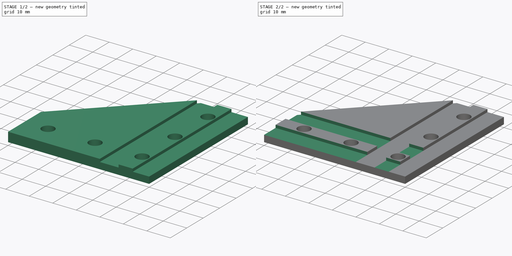
[diagram: build sequence overview — one tinted view per stage of 2, left to right]
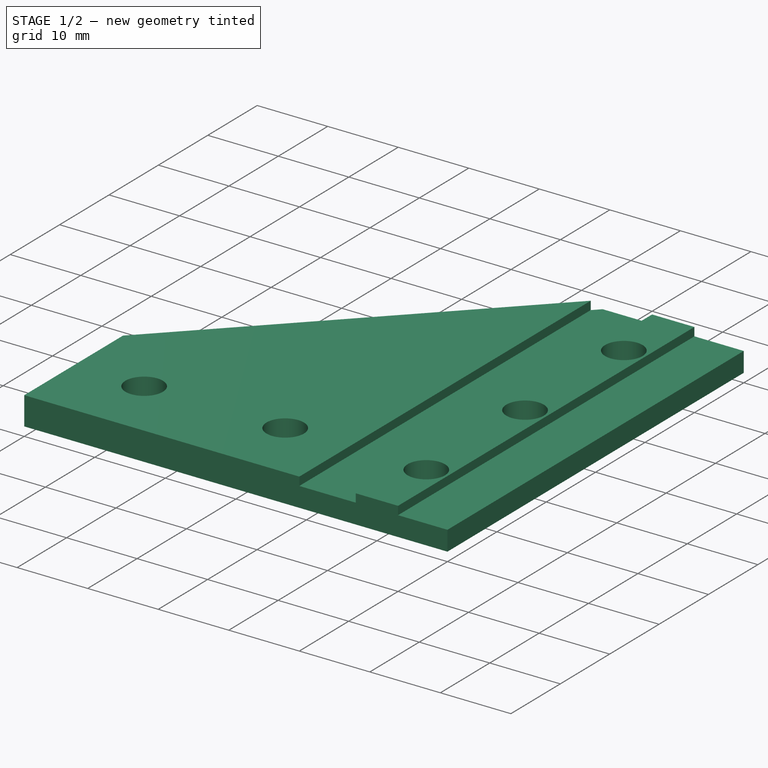
[diagram: stage 1 of 2 — iso view after this stage's code; geometry added in this stage tinted green]
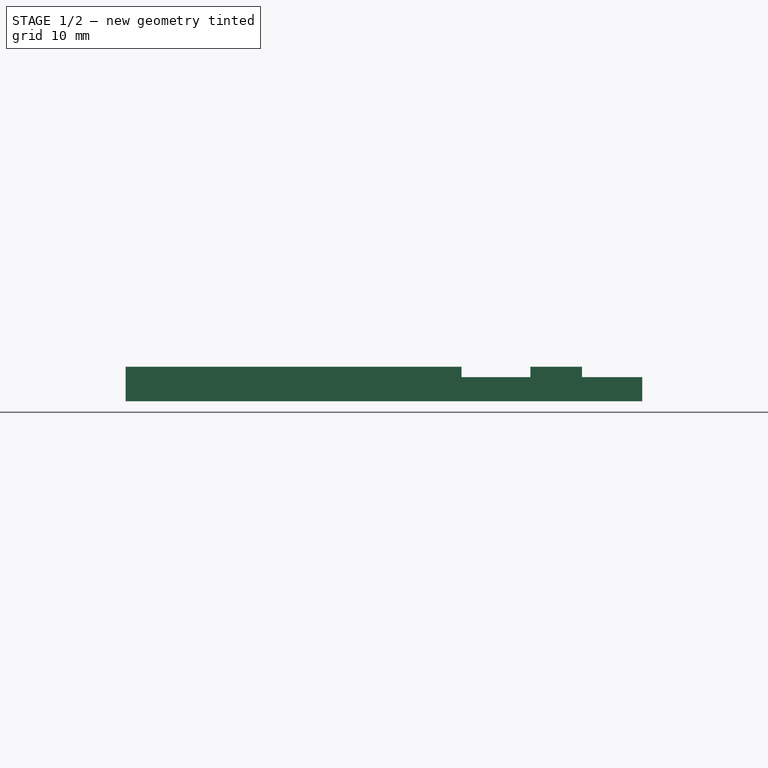
[diagram: stage 1 of 2 — front view after this stage's code; geometry added in this stage tinted green]
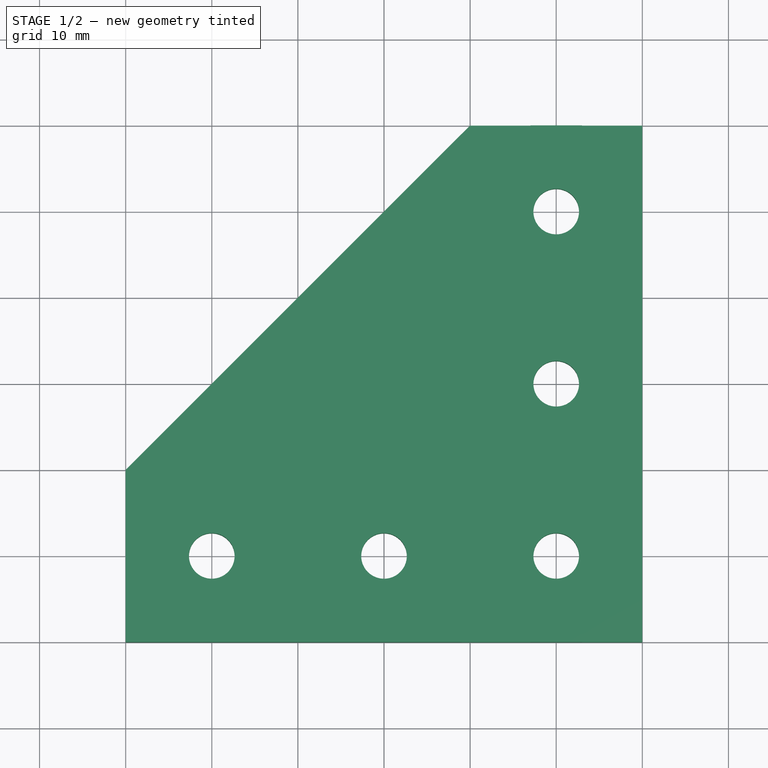
[diagram: stage 1 of 2 — top view after this stage's code; geometry added in this stage tinted green]
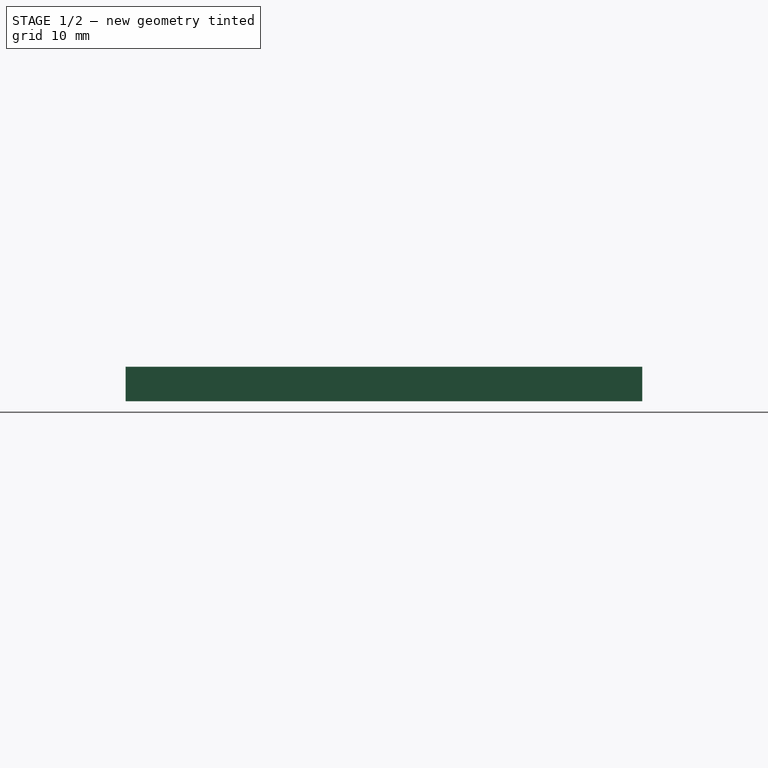
[diagram: stage 1 of 2 — right view after this stage's code; geometry added in this stage tinted green]
FCSTD DOCUMENT  (FreeCAD 0.15R4671 (Git))
Label: lplate
License: All rights reserved
LicenseURL: http://en.wikipedia.org/wiki/All_rights_reserved
objects: Sketcher::SketchObject×3, PartDesign::Pocket×2, PartDesign::Pad×1
note: 9 computed .brp shape members not serialized (recipe doc carries the construction recipe); baked Part::Feature solids carry a one-line shape summary decoded from their .brp

FEATURE [Sketcher::SketchObject] Sketch
  sketch-geometry (12):
    g0: LineSegment StartX=0 StartY=0 StartZ=0 EndX=0 EndY=60 EndZ=0
    g1: LineSegment StartX=0 StartY=60 StartZ=0 EndX=-20 EndY=60 EndZ=0
    g2: LineSegment StartX=-20 StartY=60 StartZ=0 EndX=-60 EndY=20 EndZ=0
    g3: LineSegment StartX=-60 StartY=20 StartZ=0 EndX=-60 EndY=0 EndZ=0
    g4: LineSegment StartX=-60 StartY=0 StartZ=0 EndX=0 EndY=0 EndZ=0
    g5: LineSegment [constr] StartX=-60 StartY=10 StartZ=0 EndX=0 EndY=10 EndZ=0
    g6: LineSegment [constr] StartX=-10 StartY=60 StartZ=0 EndX=-10 EndY=0 EndZ=0
    g7: Circle CenterX=-50 CenterY=10 CenterZ=0 NormalX=0 NormalY=0 NormalZ=1 Radius=2.65
    g8: Circle CenterX=-10 CenterY=10 CenterZ=0 NormalX=0 NormalY=0 NormalZ=1 Radius=2.65
    g9: Circle CenterX=-30 CenterY=10 CenterZ=0 NormalX=0 NormalY=0 NormalZ=1 Radius=2.65
    g10: Circle CenterX=-10 CenterY=50 CenterZ=0 NormalX=0 NormalY=0 NormalZ=1 Radius=2.65
    g11: Circle CenterX=-10 CenterY=30 CenterZ=0 NormalX=0 NormalY=0 NormalZ=1 Radius=2.65
  constraints (37):
    c: Coincident(g-1,g0)
    c: PointOnObject(g0,g-2)
    c: Coincident(g0,g1)
    c: Horizontal(g1)
    c: Coincident(g1,g2)
    c: Coincident(g2,g3)
    c: Vertical(g3)
    c: Coincident(g3,g4)
    c: Coincident(g4,g0)
    c: Horizontal(g4)
    c: DistanceX(g-1,g3) = -60
    c: DistanceY(g-1,g0) = 60
    c: Equal(g3,g1)
    c: DistanceY(g2,g3) = -20
    c: Horizontal(g5)
    c: Vertical(g6)
    c: DistanceX(g0,g6) = -10
    c: DistanceY(g5,g3) = -10
    c: PointOnObject(g5,g0)
    c: PointOnObject(g6,g4)
    c: PointOnObject(g5,g3)
    c: PointOnObject(g6,g1)
    c: PointOnObject(g7,g5)
    c: PointOnObject(g8,g5)
    c: PointOnObject(g9,g5)
    c: PointOnObject(g10,g6)
    c: PointOnObject(g11,g6)
    c: Radius(g7) = 2.65
    c: Equal(g9,g7)
    c: Equal(g8,g7)
    c: Equal(g11,g7)
    c: Equal(g10,g7)
    c: DistanceX(g8,g5) = 10
    c: DistanceX(g8,g9) = -20
    c: DistanceX(g9,g7) = -20
    c: DistanceY(g8,g11) = 20
    c: DistanceY(g11,g10) = 20
FEATURE [PartDesign::Pad] Pad
  Length = 4
  Length2 = 100
  Sketch = -> Sketch
  Type = 0
FEATURE [Sketcher::SketchObject] Sketch001
  ExternalGeometry = -> [Pad]
  Placement = pos=(0,0,0) rot=(1,0,0;1.5708rad)
  Support = -> Pad [Face5]
  sketch-geometry (8):
    g0: LineSegment StartX=-7 StartY=4 StartZ=0 EndX=0 EndY=4 EndZ=0
    g1: LineSegment StartX=0 StartY=4 StartZ=0 EndX=0 EndY=2.8 EndZ=0
    g2: LineSegment StartX=0 StartY=2.8 StartZ=0 EndX=-7 EndY=2.8 EndZ=0
    g3: LineSegment StartX=-7 StartY=2.8 StartZ=0 EndX=-7 EndY=4 EndZ=0
    g4: LineSegment StartX=-21 StartY=4 StartZ=0 EndX=-13 EndY=4 EndZ=0
    g5: LineSegment StartX=-13 StartY=4 StartZ=0 EndX=-13 EndY=2.8 EndZ=0
    g6: LineSegment StartX=-13 StartY=2.8 StartZ=0 EndX=-21 EndY=2.8 EndZ=0
    g7: LineSegment StartX=-21 StartY=2.8 StartZ=0 EndX=-21 EndY=4 EndZ=0
  constraints (24):
    c: Coincident(g0,g1)
    c: Coincident(g1,g2)
    c: Coincident(g2,g3)
    c: Coincident(g3,g0)
    c: Horizontal(g0)
    c: Horizontal(g2)
    c: Vertical(g1)
    c: Vertical(g3)
    c: PointOnObject(g0,g-4)
    c: Coincident(g4,g5)
    c: Coincident(g5,g6)
    c: Coincident(g6,g7)
    c: Coincident(g7,g4)
    c: Horizontal(g4)
    c: Horizontal(g6)
    c: Vertical(g5)
    c: Vertical(g7)
    c: PointOnObject(g4,g-4)
    c: Coincident(g0,g-4)
    c: DistanceX(g0,g4) = -6
    c: DistanceX(g0,g0) = 7
    c: DistanceX(g4,g4) = 8
    c: DistanceY(g0,g1) = -1.2
    c: Equal(g3,g5)
FEATURE [PartDesign::Pocket] Pocket
  Length = 5
  Sketch = -> Sketch001
  Type = 1
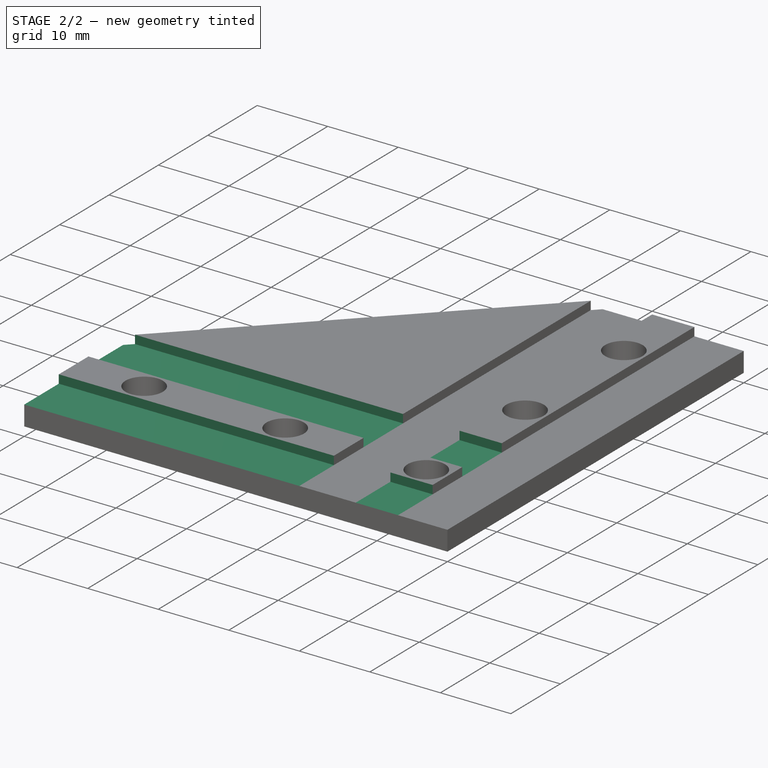
[diagram: stage 2 of 2 — iso view after this stage's code; geometry added in this stage tinted green]
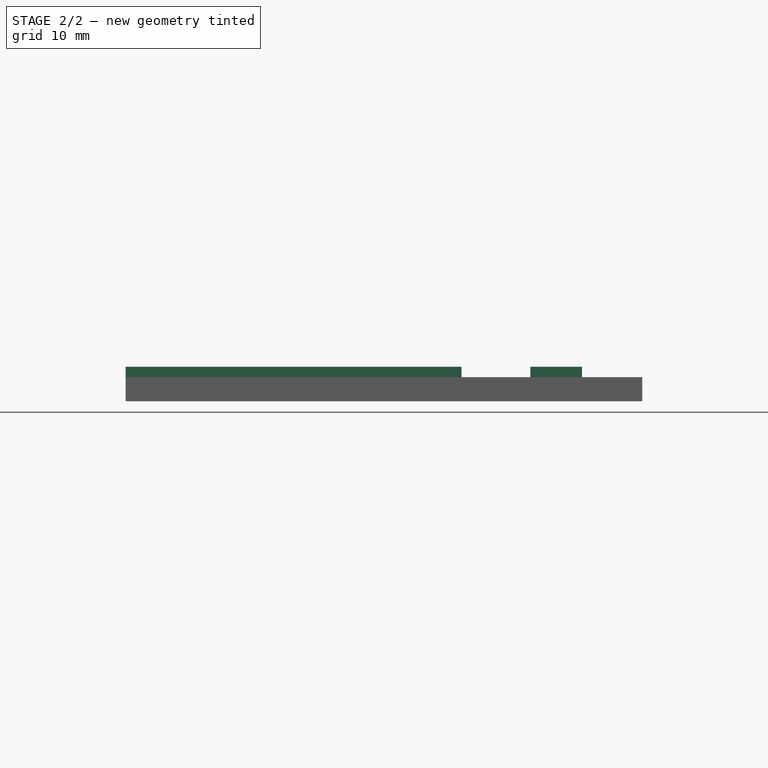
[diagram: stage 2 of 2 — front view after this stage's code; geometry added in this stage tinted green]
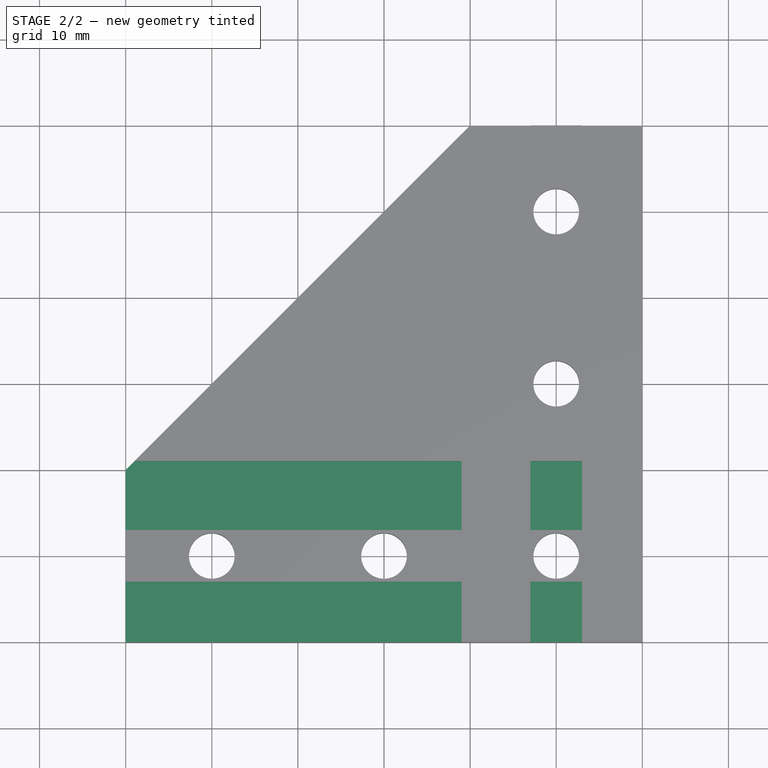
[diagram: stage 2 of 2 — top view after this stage's code; geometry added in this stage tinted green]
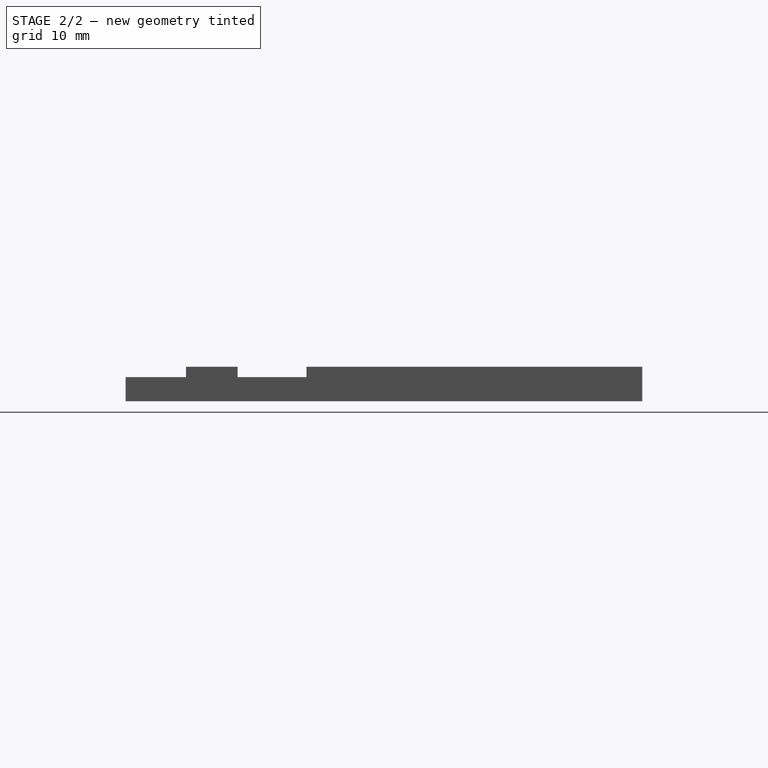
[diagram: stage 2 of 2 — right view after this stage's code; geometry added in this stage tinted green]
FEATURE [Sketcher::SketchObject] Sketch002
  ExternalGeometry = -> [Pocket]
  Placement = pos=(0,0,0) rot=(0.57735,0.57735,0.57735;2.0944rad)
  Support = -> Pocket [Face1]
  sketch-geometry (8):
    g0: LineSegment StartX=0 StartY=4 StartZ=0 EndX=7 EndY=4 EndZ=0
    g1: LineSegment StartX=7 StartY=4 StartZ=0 EndX=7 EndY=2.8 EndZ=0
    g2: LineSegment StartX=7 StartY=2.8 StartZ=0 EndX=0 EndY=2.8 EndZ=0
    g3: LineSegment StartX=0 StartY=2.8 StartZ=0 EndX=0 EndY=4 EndZ=0
    g4: LineSegment StartX=13 StartY=4 StartZ=0 EndX=21 EndY=4 EndZ=0
    g5: LineSegment StartX=21 StartY=4 StartZ=0 EndX=21 EndY=2.8 EndZ=0
    g6: LineSegment StartX=21 StartY=2.8 StartZ=0 EndX=13 EndY=2.8 EndZ=0
    g7: LineSegment StartX=13 StartY=2.8 StartZ=0 EndX=13 EndY=4 EndZ=0
  constraints (23):
    c: Coincident(g0,g1)
    c: Coincident(g1,g2)
    c: Coincident(g2,g3)
    c: Coincident(g3,g0)
    c: Horizontal(g0)
    c: Horizontal(g2)
    c: Vertical(g1)
    c: Vertical(g3)
    c: Coincident(g0,g-4)
    c: Coincident(g4,g5)
    c: Coincident(g5,g6)
    c: Coincident(g6,g7)
    c: Coincident(g7,g4)
    c: Horizontal(g4)
    c: Horizontal(g6)
    c: Vertical(g5)
    c: Vertical(g7)
    c: PointOnObject(g4,g-3)
    c: DistanceX(g0,g4) = 6
    c: DistanceX(g4,g4) = 8
    c: DistanceX(g0,g0) = -7
    c: DistanceY(g2,g0) = 1.2
    c: Equal(g1,g7)
FEATURE [PartDesign::Pocket] Pocket001
  Length = 5
  Sketch = -> Sketch002
  Type = 1
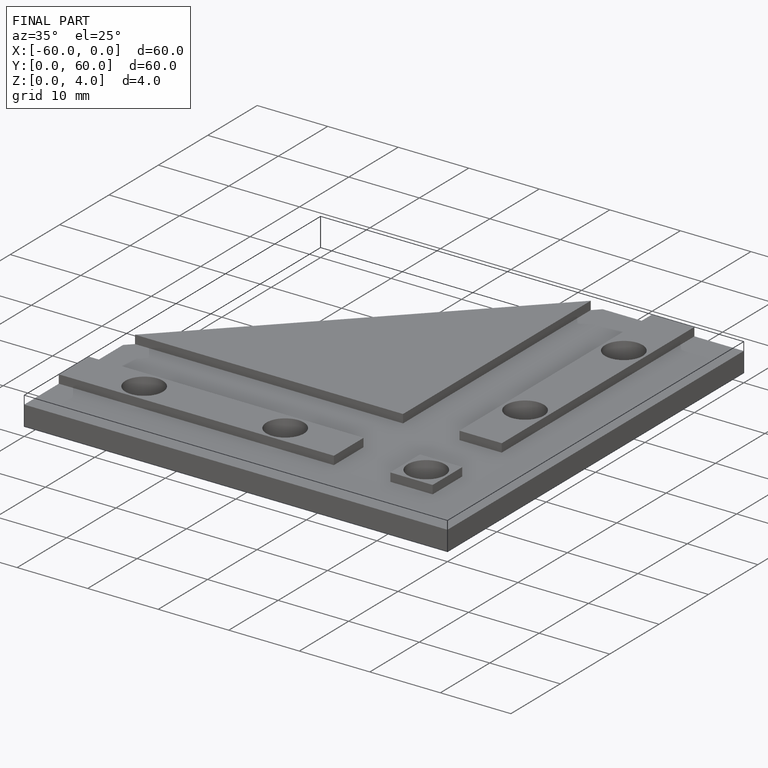
[diagram: finished part — iso view with bounding-box wireframe]
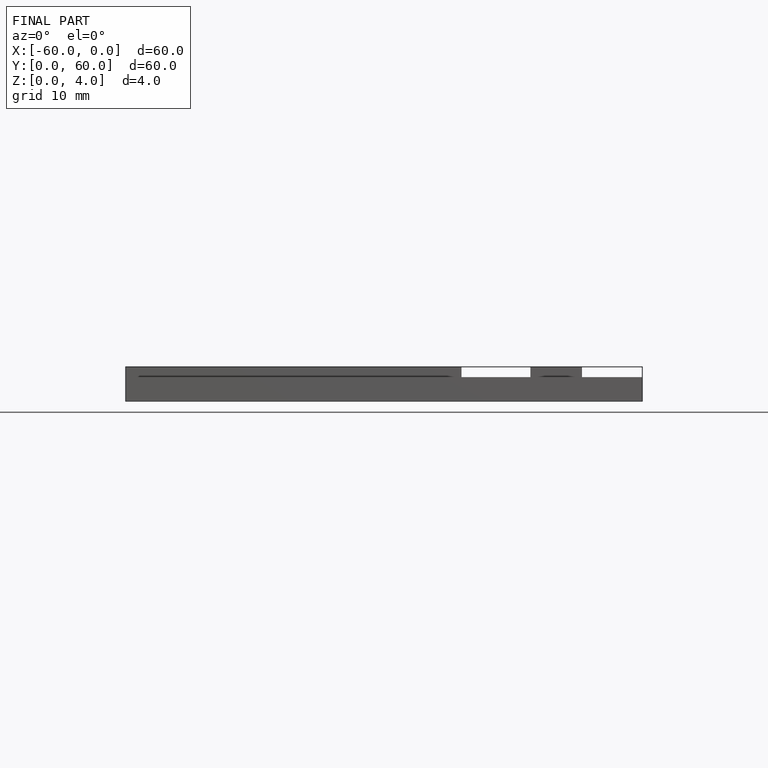
[diagram: finished part — front view with bounding-box wireframe]
